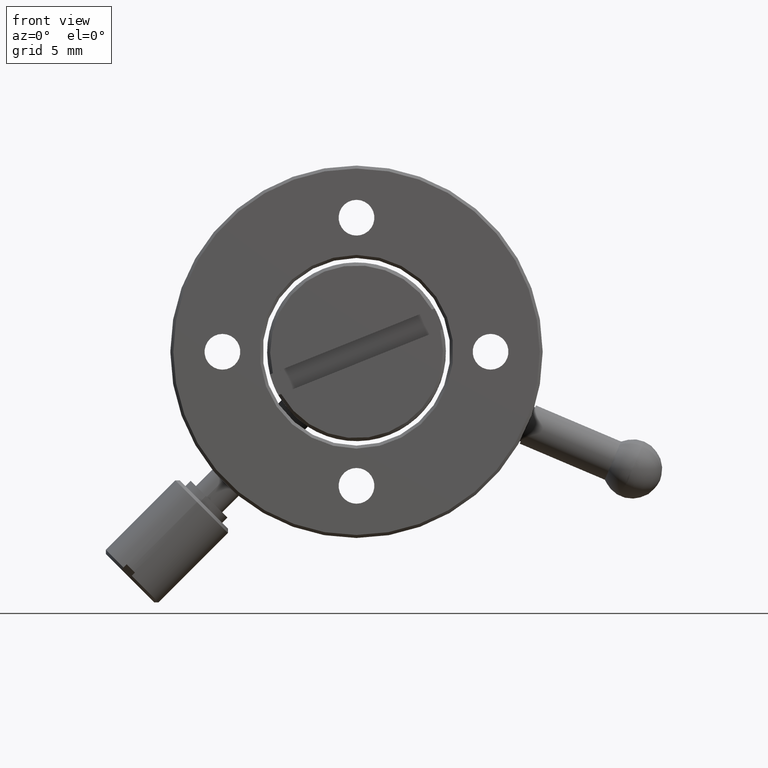
[diagram: clean part render]
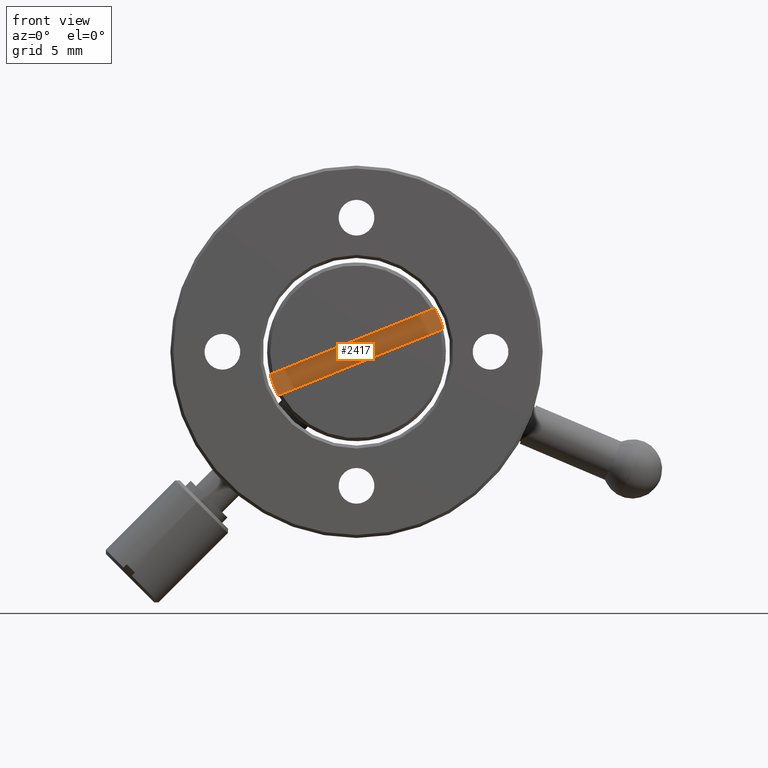
[diagram: same view with one face highlighted and labeled with its STEP entity id]
A machine part, front view. The second image highlights one B-rep face of the part: STEP entity #2417.
In plain terms, the highlighted planar face has unit normal (-0, -1, -0).
Its self-contained STEP definition (entity closure, byte-faithful):
#23 = LINE ( 'NONE', #769, #2857 ) ;
#84 = DIRECTION ( 'NONE',  ( -6.441208679505482858E-18, -1.000000000000000000, -2.580519202940399182E-18 ) ) ;
#104 = CARTESIAN_POINT ( 'NONE',  ( -2.637511861702491007E-15, 1.420000000000002816, -1.419285561617219319E-17 ) ) ;
#119 = DIRECTION ( 'NONE',  ( -0.9282760002827676882, 6.938893903907229918E-18, -0.3718920102651132598 ) ) ;
#151 = DIRECTION ( 'NONE',  ( -6.441208679505482858E-18, -1.000000000000000000, -2.580519202940399182E-18 ) ) ;
#238 = CIRCLE ( 'NONE', #440, 6.000000000000000888 ) ;
#317 = CARTESIAN_POINT ( 'NONE',  ( -2.637511861702491007E-15, 1.420000000000002816, -1.419285561617219319E-17 ) ) ;
#355 = DIRECTION ( 'NONE',  ( -0.9282760002827675772, 0.000000000000000000, -0.3718920102651132598 ) ) ;
#361 = DIRECTION ( 'NONE',  ( -6.441208679505482858E-18, -1.000000000000000000, -2.580519202940399182E-18 ) ) ;
#375 = PLANE ( 'NONE',  #700 ) ;
#408 = CARTESIAN_POINT ( 'NONE',  ( 5.569656001696604797, 1.420000000000002816, 2.231352061590680336 ) ) ;
#440 = AXIS2_PLACEMENT_3D ( 'NONE', #104, #361, #2083 ) ;
#486 = CARTESIAN_POINT ( 'NONE',  ( -2.637511861702491007E-15, 1.420000000000002816, -1.419285561617219319E-17 ) ) ;
#534 = EDGE_CURVE ( 'NONE', #1748, #2070, #2195, .T. ) ;
#700 = AXIS2_PLACEMENT_3D ( 'NONE', #1612, #2337, #119 ) ;
#769 = CARTESIAN_POINT ( 'NONE',  ( 6.784534939240452367, 1.420000000000002816, 1.910115457824948404 ) ) ;
#854 = VERTEX_POINT ( 'NONE', #3113 ) ;
#924 = VERTEX_POINT ( 'NONE', #2632 ) ;
#925 = CARTESIAN_POINT ( 'NONE',  ( -2.637511861702491007E-15, 1.420000000000002816, -1.419285561617219319E-17 ) ) ;
#962 = CARTESIAN_POINT ( 'NONE',  ( 6.226696923842781395, 1.420000000000002816, 3.302529458249100269 ) ) ;
#1023 = EDGE_CURVE ( 'NONE', #924, #854, #23, .T. ) ;
#1117 = EDGE_CURVE ( 'NONE', #2070, #2948, #238, .T. ) ;
#1494 = VECTOR ( 'NONE', #1954, 1000.000000000000000 ) ;
#1612 = CARTESIAN_POINT ( 'NONE',  ( -2.637511861702491007E-15, 1.420000000000002816, -1.419285561617219319E-17 ) ) ;
#1620 = EDGE_CURVE ( 'NONE', #2948, #924, #1725, .T. ) ;
#1686 = CARTESIAN_POINT ( 'NONE',  ( -5.569656001696609238, 1.420000000000002816, -2.231352061590680780 ) ) ;
#1725 = CIRCLE ( 'NONE', #2841, 6.000000000000000888 ) ;
#1748 = VERTEX_POINT ( 'NONE', #3094 ) ;
#1749 = ORIENTED_EDGE ( 'NONE', *, *, #1023, .T. ) ;
#1759 = DIRECTION ( 'NONE',  ( -6.441208679505482858E-18, -1.000000000000000000, -2.580519202940399182E-18 ) ) ;
#1837 = AXIS2_PLACEMENT_3D ( 'NONE', #925, #151, #2098 ) ;
#1846 = CIRCLE ( 'NONE', #2610, 6.000000000000000888 ) ;
#1891 = CIRCLE ( 'NONE', #1837, 6.000000000000000888 ) ;
#1907 = ORIENTED_EDGE ( 'NONE', *, *, #1117, .T. ) ;
#1954 = DIRECTION ( 'NONE',  ( -0.9282760002827676882, 6.938893903907228378E-18, -0.3718920102651132598 ) ) ;
#2037 = FACE_OUTER_BOUND ( 'NONE', #2288, .T. ) ;
#2070 = VERTEX_POINT ( 'NONE', #2317 ) ;
#2083 = DIRECTION ( 'NONE',  ( -0.9282760002827675772, 0.000000000000000000, -0.3718920102651132598 ) ) ;
#2098 = DIRECTION ( 'NONE',  ( -0.9282760002827675772, 0.000000000000000000, -0.3718920102651132598 ) ) ;
#2195 = LINE ( 'NONE', #962, #1494 ) ;
#2288 = EDGE_LOOP ( 'NONE', ( #2414, #2296, #2932, #1907, #2446, #1749 ) ) ;
#2296 = ORIENTED_EDGE ( 'NONE', *, *, #2342, .T. ) ;
#2317 = CARTESIAN_POINT ( 'NONE',  ( -5.804890758449171351, 1.420000000000002816, -1.517643990688005928 ) ) ;
#2337 = DIRECTION ( 'NONE',  ( -6.441208679505482858E-18, -1.000000000000000000, -2.580519202940399182E-18 ) ) ;
#2342 = EDGE_CURVE ( 'NONE', #2511, #1748, #1846, .T. ) ;
#2414 = ORIENTED_EDGE ( 'NONE', *, *, #2966, .T. ) ;
#2417 = ADVANCED_FACE ( 'NONE', ( #2037 ), #375, .T. ) ;
#2446 = ORIENTED_EDGE ( 'NONE', *, *, #1620, .T. ) ;
#2511 = VERTEX_POINT ( 'NONE', #408 ) ;
#2610 = AXIS2_PLACEMENT_3D ( 'NONE', #486, #1759, #2729 ) ;
#2632 = CARTESIAN_POINT ( 'NONE',  ( -5.247052743051502155, 1.420000000000002816, -2.910057991112156905 ) ) ;
#2729 = DIRECTION ( 'NONE',  ( -0.9282760002827675772, 0.000000000000000000, -0.3718920102651132598 ) ) ;
#2743 = DIRECTION ( 'NONE',  ( 0.9282760002827676882, -6.938893903907228378E-18, 0.3718920102651132598 ) ) ;
#2841 = AXIS2_PLACEMENT_3D ( 'NONE', #317, #84, #355 ) ;
#2857 = VECTOR ( 'NONE', #2743, 1000.000000000000000 ) ;
#2932 = ORIENTED_EDGE ( 'NONE', *, *, #534, .T. ) ;
#2948 = VERTEX_POINT ( 'NONE', #1686 ) ;
#2966 = EDGE_CURVE ( 'NONE', #854, #2511, #1891, .T. ) ;
#3094 = CARTESIAN_POINT ( 'NONE',  ( 5.247052743051497714, 1.420000000000002816, 2.910057991112156905 ) ) ;
#3113 = CARTESIAN_POINT ( 'NONE',  ( 5.804890758449166022, 1.420000000000002816, 1.517643990688005928 ) ) ;